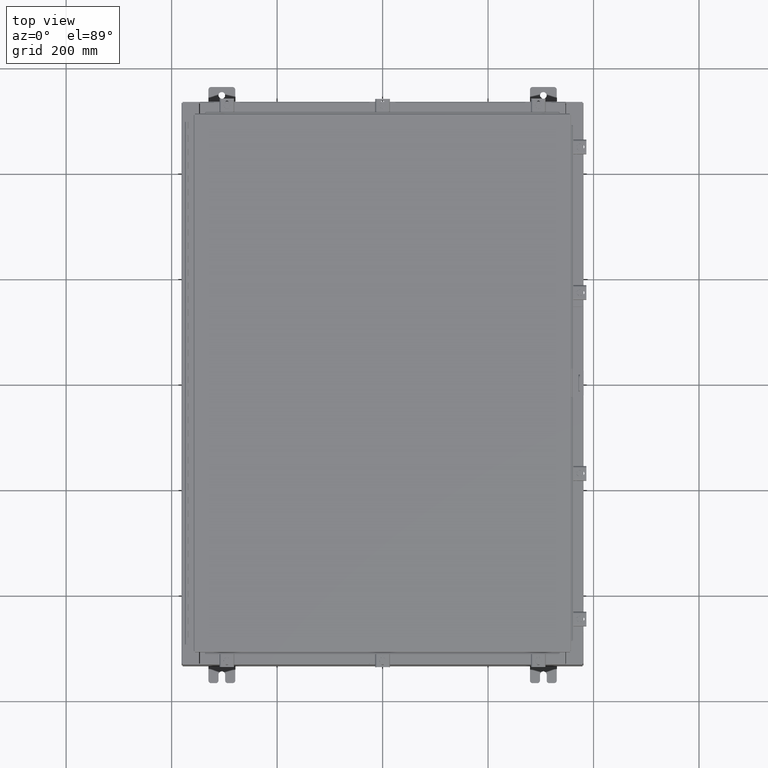
[diagram: clean part render]
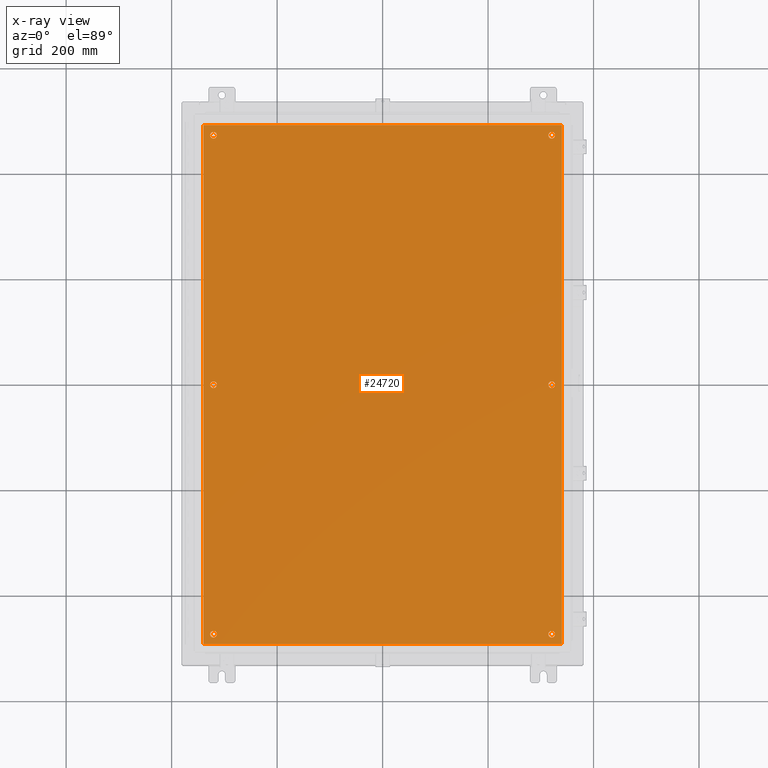
[diagram: x-ray — body ghosted, one internal face saturated and labeled with its STEP entity id]
A machine part, top view, then the same camera in x-ray: the body is ghosted and one INTERNAL B-rep face — a face not visible from any outside direction — is saturated and labeled: STEP entity #24720.
In plain terms, the highlighted planar face has unit normal (0, 0, -1).
Its self-contained STEP definition (entity closure, byte-faithful):
#491 = AXIS2_PLACEMENT_3D ( 'NONE', #9149, #34912, #12848 ) ;
#499 = DIRECTION ( 'NONE',  ( -1.000000000000000000, -0.0000000000000000000, -0.0000000000000000000 ) ) ;
#902 = CARTESIAN_POINT ( 'NONE',  ( -13.38300000000000300, 19.38299999999999200, -0.1040000000000041900 ) ) ;
#1068 = DIRECTION ( 'NONE',  ( 0.0000000000000000000, -1.000000000000000000, 0.0000000000000000000 ) ) ;
#1863 = LINE ( 'NONE', #44547, #30135 ) ;
#2125 = ORIENTED_EDGE ( 'NONE', *, *, #21528, .T. ) ;
#2820 = CARTESIAN_POINT ( 'NONE',  ( 12.62500000000000400, 18.62499999999999600, -0.1039999999999999800 ) ) ;
#4066 = VERTEX_POINT ( 'NONE', #41940 ) ;
#4936 = EDGE_CURVE ( 'NONE', #35049, #34937, #13552, .T. ) ;
#5159 = ORIENTED_EDGE ( 'NONE', *, *, #13239, .T. ) ;
#5634 = ORIENTED_EDGE ( 'NONE', *, *, #43997, .F. ) ;
#5685 = CARTESIAN_POINT ( 'NONE',  ( -12.62500000000000400, -18.62499999999999600, -0.1039999999999999800 ) ) ;
#6240 = VERTEX_POINT ( 'NONE', #39483 ) ;
#6535 = DIRECTION ( 'NONE',  ( -1.000000000000000000, 0.0000000000000000000, 0.0000000000000000000 ) ) ;
#6545 = DIRECTION ( 'NONE',  ( -0.0000000000000000000, -0.0000000000000000000, 1.000000000000000000 ) ) ;
#6703 = CARTESIAN_POINT ( 'NONE',  ( 13.38299999999999900, -19.38299999999999900, -0.1040000000000009100 ) ) ;
#7278 = CARTESIAN_POINT ( 'NONE',  ( -13.38300000000000300, 19.38299999999999200, -0.1040000000000041900 ) ) ;
#7612 = CARTESIAN_POINT ( 'NONE',  ( 13.50000000000000000, 19.38299999999999200, -0.1040000000000009100 ) ) ;
#7767 = CARTESIAN_POINT ( 'NONE',  ( 12.62500000000000200, 2.262348282635109500E-015, -0.1039999999999999800 ) ) ;
#8230 = FACE_BOUND ( 'NONE', #26983, .T. ) ;
#8465 = DIRECTION ( 'NONE',  ( -0.0000000000000000000, -0.0000000000000000000, 1.000000000000000000 ) ) ;
#8918 = EDGE_LOOP ( 'NONE', ( #2125, #15786 ) ) ;
#9006 = AXIS2_PLACEMENT_3D ( 'NONE', #30528, #8465, #34230 ) ;
#9149 = CARTESIAN_POINT ( 'NONE',  ( 12.62500000000000400, -18.62499999999999600, -0.1039999999999999800 ) ) ;
#9388 = DIRECTION ( 'NONE',  ( -1.000000000000000000, 0.0000000000000000000, 0.0000000000000000000 ) ) ;
#9478 = AXIS2_PLACEMENT_3D ( 'NONE', #19087, #44869, #22786 ) ;
#10097 = CARTESIAN_POINT ( 'NONE',  ( 12.87500000000000400, 2.262348282635109500E-015, -0.1039999999999999800 ) ) ;
#10171 = VERTEX_POINT ( 'NONE', #26053 ) ;
#10238 = VERTEX_POINT ( 'NONE', #11893 ) ;
#10370 = EDGE_LOOP ( 'NONE', ( #36594, #31292 ) ) ;
#10696 = ORIENTED_EDGE ( 'NONE', *, *, #18600, .F. ) ;
#10705 = VECTOR ( 'NONE', #45306, 39.37007874015748100 ) ;
#10766 = CIRCLE ( 'NONE', #36349, 0.2500000000000008900 ) ;
#10868 = EDGE_CURVE ( 'NONE', #37950, #22636, #23561, .T. ) ;
#11452 = DIRECTION ( 'NONE',  ( -1.000000000000000000, 0.0000000000000000000, 0.0000000000000000000 ) ) ;
#11766 = VERTEX_POINT ( 'NONE', #24162 ) ;
#11893 = CARTESIAN_POINT ( 'NONE',  ( -12.87500000000000500, -18.62499999999999600, -0.1039999999999999800 ) ) ;
#12434 = VERTEX_POINT ( 'NONE', #22125 ) ;
#12848 = DIRECTION ( 'NONE',  ( -1.000000000000000000, 0.0000000000000000000, 0.0000000000000000000 ) ) ;
#13239 = EDGE_CURVE ( 'NONE', #27480, #46648, #43429, .T. ) ;
#13358 = CARTESIAN_POINT ( 'NONE',  ( 12.37500000000000200, 2.292964452613793300E-015, -0.1039999999999999800 ) ) ;
#13379 = CARTESIAN_POINT ( 'NONE',  ( -12.62500000000000200, -8.298848852119578500E-016, -0.1039999999999999800 ) ) ;
#13552 = LINE ( 'NONE', #902, #32000 ) ;
#13987 = AXIS2_PLACEMENT_3D ( 'NONE', #2820, #28605, #6535 ) ;
#14262 = CARTESIAN_POINT ( 'NONE',  ( -12.62500000000000400, 18.62499999999999600, -0.1039999999999999800 ) ) ;
#14514 = EDGE_CURVE ( 'NONE', #22636, #37950, #36990, .T. ) ;
#15388 = ORIENTED_EDGE ( 'NONE', *, *, #25058, .T. ) ;
#15558 = AXIS2_PLACEMENT_3D ( 'NONE', #13379, #39133, #17055 ) ;
#15786 = ORIENTED_EDGE ( 'NONE', *, *, #46821, .T. ) ;
#15941 = EDGE_CURVE ( 'NONE', #45479, #11766, #27053, .T. ) ;
#15970 = AXIS2_PLACEMENT_3D ( 'NONE', #28613, #6545, #32321 ) ;
#16227 = EDGE_CURVE ( 'NONE', #11766, #45479, #36229, .T. ) ;
#16839 = FACE_OUTER_BOUND ( 'NONE', #28680, .T. ) ;
#17055 = DIRECTION ( 'NONE',  ( -1.000000000000000000, 0.0000000000000000000, 0.0000000000000000000 ) ) ;
#17302 = EDGE_CURVE ( 'NONE', #6240, #46580, #10766, .T. ) ;
#17553 = ORIENTED_EDGE ( 'NONE', *, *, #4936, .F. ) ;
#17606 = CARTESIAN_POINT ( 'NONE',  ( 0.0000000000000000000, 0.0000000000000000000, -0.1039999999999999800 ) ) ;
#17641 = CIRCLE ( 'NONE', #13987, 0.2500000000000008900 ) ;
#17962 = DIRECTION ( 'NONE',  ( -1.000000000000000000, 0.0000000000000000000, 0.0000000000000000000 ) ) ;
#18600 = EDGE_CURVE ( 'NONE', #12434, #35049, #27741, .T. ) ;
#18667 = CARTESIAN_POINT ( 'NONE',  ( -12.87500000000000400, -7.992687152332741600E-016, -0.1039999999999999800 ) ) ;
#19087 = CARTESIAN_POINT ( 'NONE',  ( 12.62500000000000400, -18.62499999999999600, -0.1039999999999999800 ) ) ;
#19365 = CARTESIAN_POINT ( 'NONE',  ( -13.50000000000000000, -19.38300000000000300, -0.1040000000000009100 ) ) ;
#19421 = CIRCLE ( 'NONE', #34253, 0.2500000000000008900 ) ;
#19532 = DIRECTION ( 'NONE',  ( -0.0000000000000000000, -0.0000000000000000000, 1.000000000000000000 ) ) ;
#20308 = FACE_BOUND ( 'NONE', #37181, .T. ) ;
#20962 = DIRECTION ( 'NONE',  ( -0.0000000000000000000, -0.0000000000000000000, 1.000000000000000000 ) ) ;
#21305 = DIRECTION ( 'NONE',  ( 0.0000000000000000000, 0.0000000000000000000, -1.000000000000000000 ) ) ;
#21378 = VERTEX_POINT ( 'NONE', #23615 ) ;
#21383 = CARTESIAN_POINT ( 'NONE',  ( -12.62500000000000400, 18.62499999999999600, -0.1039999999999999800 ) ) ;
#21418 = CARTESIAN_POINT ( 'NONE',  ( -13.38300000000000300, -19.38300000000000300, -0.1040000000000009100 ) ) ;
#21528 = EDGE_CURVE ( 'NONE', #21378, #4066, #17641, .T. ) ;
#21713 = AXIS2_PLACEMENT_3D ( 'NONE', #7767, #33532, #11452 ) ;
#22125 = CARTESIAN_POINT ( 'NONE',  ( 13.38299999999999900, 19.38299999999999200, -0.1040000000000009100 ) ) ;
#22461 = DIRECTION ( 'NONE',  ( 0.0000000000000000000, 1.000000000000000000, 0.0000000000000000000 ) ) ;
#22636 = VERTEX_POINT ( 'NONE', #13358 ) ;
#22786 = DIRECTION ( 'NONE',  ( -1.000000000000000000, 0.0000000000000000000, 0.0000000000000000000 ) ) ;
#23561 = CIRCLE ( 'NONE', #9006, 0.2500000000000008900 ) ;
#23615 = CARTESIAN_POINT ( 'NONE',  ( 12.87500000000000500, 18.62499999999999600, -0.1039999999999999800 ) ) ;
#23723 = CIRCLE ( 'NONE', #31722, 0.2500000000000008900 ) ;
#24162 = CARTESIAN_POINT ( 'NONE',  ( 12.37500000000000400, -18.62499999999999600, -0.1039999999999999800 ) ) ;
#24206 = CIRCLE ( 'NONE', #15970, 0.2500000000000008900 ) ;
#24720 = ADVANCED_FACE ( 'NONE', ( #8230, #20308, #27808, #46246, #36440, #26648, #16839 ), #39678, .T. ) ;
#25058 = EDGE_CURVE ( 'NONE', #10171, #10238, #23723, .T. ) ;
#25085 = DIRECTION ( 'NONE',  ( -1.000000000000000000, 0.0000000000000000000, 0.0000000000000000000 ) ) ;
#25899 = ORIENTED_EDGE ( 'NONE', *, *, #42304, .T. ) ;
#26053 = CARTESIAN_POINT ( 'NONE',  ( -12.37500000000000400, -18.62499999999999600, -0.1039999999999999800 ) ) ;
#26580 = VECTOR ( 'NONE', #499, 39.37007874015748100 ) ;
#26648 = FACE_BOUND ( 'NONE', #10370, .T. ) ;
#26833 = AXIS2_PLACEMENT_3D ( 'NONE', #43029, #20962, #46740 ) ;
#26983 = EDGE_LOOP ( 'NONE', ( #38936, #32059 ) ) ;
#27053 = CIRCLE ( 'NONE', #491, 0.2500000000000008900 ) ;
#27288 = CARTESIAN_POINT ( 'NONE',  ( -12.37500000000000200, -8.298848852119578500E-016, -0.1039999999999999800 ) ) ;
#27480 = VERTEX_POINT ( 'NONE', #18667 ) ;
#27683 = AXIS2_PLACEMENT_3D ( 'NONE', #17606, #21305, #47069 ) ;
#27741 = LINE ( 'NONE', #7612, #26580 ) ;
#27808 = FACE_BOUND ( 'NONE', #31834, .T. ) ;
#28131 = ORIENTED_EDGE ( 'NONE', *, *, #36088, .T. ) ;
#28605 = DIRECTION ( 'NONE',  ( -0.0000000000000000000, -0.0000000000000000000, 1.000000000000000000 ) ) ;
#28613 = CARTESIAN_POINT ( 'NONE',  ( -12.62500000000000200, -8.298848852119578500E-016, -0.1039999999999999800 ) ) ;
#28680 = EDGE_LOOP ( 'NONE', ( #44914, #17553, #10696, #5634 ) ) ;
#29134 = LINE ( 'NONE', #19365, #10705 ) ;
#29917 = VERTEX_POINT ( 'NONE', #6703 ) ;
#30135 = VECTOR ( 'NONE', #22461, 39.37007874015748100 ) ;
#30528 = CARTESIAN_POINT ( 'NONE',  ( 12.62500000000000200, 2.262348282635109500E-015, -0.1039999999999999800 ) ) ;
#31292 = ORIENTED_EDGE ( 'NONE', *, *, #37987, .T. ) ;
#31462 = DIRECTION ( 'NONE',  ( -0.0000000000000000000, -0.0000000000000000000, 1.000000000000000000 ) ) ;
#31722 = AXIS2_PLACEMENT_3D ( 'NONE', #41614, #19532, #45311 ) ;
#31834 = EDGE_LOOP ( 'NONE', ( #15388, #25899 ) ) ;
#32000 = VECTOR ( 'NONE', #1068, 39.37007874015748100 ) ;
#32017 = CIRCLE ( 'NONE', #36835, 0.2500000000000008900 ) ;
#32059 = ORIENTED_EDGE ( 'NONE', *, *, #14514, .T. ) ;
#32321 = DIRECTION ( 'NONE',  ( -1.000000000000000000, 0.0000000000000000000, 0.0000000000000000000 ) ) ;
#33532 = DIRECTION ( 'NONE',  ( -0.0000000000000000000, -0.0000000000000000000, 1.000000000000000000 ) ) ;
#34230 = DIRECTION ( 'NONE',  ( -1.000000000000000000, 0.0000000000000000000, 0.0000000000000000000 ) ) ;
#34253 = AXIS2_PLACEMENT_3D ( 'NONE', #14262, #40048, #17962 ) ;
#34912 = DIRECTION ( 'NONE',  ( -0.0000000000000000000, -0.0000000000000000000, 1.000000000000000000 ) ) ;
#34937 = VERTEX_POINT ( 'NONE', #21418 ) ;
#35049 = VERTEX_POINT ( 'NONE', #7278 ) ;
#35847 = CIRCLE ( 'NONE', #26833, 0.2500000000000008900 ) ;
#36088 = EDGE_CURVE ( 'NONE', #46648, #27480, #24206, .T. ) ;
#36229 = CIRCLE ( 'NONE', #9478, 0.2500000000000008900 ) ;
#36349 = AXIS2_PLACEMENT_3D ( 'NONE', #21383, #47155, #25085 ) ;
#36440 = FACE_BOUND ( 'NONE', #8918, .T. ) ;
#36594 = ORIENTED_EDGE ( 'NONE', *, *, #17302, .T. ) ;
#36835 = AXIS2_PLACEMENT_3D ( 'NONE', #5685, #31462, #9388 ) ;
#36990 = CIRCLE ( 'NONE', #21713, 0.2500000000000008900 ) ;
#37181 = EDGE_LOOP ( 'NONE', ( #28131, #5159 ) ) ;
#37720 = EDGE_LOOP ( 'NONE', ( #42160, #39052 ) ) ;
#37950 = VERTEX_POINT ( 'NONE', #10097 ) ;
#37987 = EDGE_CURVE ( 'NONE', #46580, #6240, #19421, .T. ) ;
#38936 = ORIENTED_EDGE ( 'NONE', *, *, #10868, .T. ) ;
#39052 = ORIENTED_EDGE ( 'NONE', *, *, #16227, .T. ) ;
#39133 = DIRECTION ( 'NONE',  ( -0.0000000000000000000, -0.0000000000000000000, 1.000000000000000000 ) ) ;
#39483 = CARTESIAN_POINT ( 'NONE',  ( -12.37500000000000400, 18.62499999999999600, -0.1039999999999999800 ) ) ;
#39678 = PLANE ( 'NONE',  #27683 ) ;
#40048 = DIRECTION ( 'NONE',  ( -0.0000000000000000000, -0.0000000000000000000, 1.000000000000000000 ) ) ;
#41614 = CARTESIAN_POINT ( 'NONE',  ( -12.62500000000000400, -18.62499999999999600, -0.1039999999999999800 ) ) ;
#41633 = CARTESIAN_POINT ( 'NONE',  ( -12.87500000000000500, 18.62499999999999600, -0.1039999999999999800 ) ) ;
#41940 = CARTESIAN_POINT ( 'NONE',  ( 12.37500000000000400, 18.62499999999999600, -0.1039999999999999800 ) ) ;
#42160 = ORIENTED_EDGE ( 'NONE', *, *, #15941, .T. ) ;
#42170 = EDGE_CURVE ( 'NONE', #34937, #29917, #29134, .T. ) ;
#42304 = EDGE_CURVE ( 'NONE', #10238, #10171, #32017, .T. ) ;
#42466 = CARTESIAN_POINT ( 'NONE',  ( 12.87500000000000500, -18.62499999999999600, -0.1039999999999999800 ) ) ;
#43029 = CARTESIAN_POINT ( 'NONE',  ( 12.62500000000000400, 18.62499999999999600, -0.1039999999999999800 ) ) ;
#43429 = CIRCLE ( 'NONE', #15558, 0.2500000000000008900 ) ;
#43997 = EDGE_CURVE ( 'NONE', #29917, #12434, #1863, .T. ) ;
#44547 = CARTESIAN_POINT ( 'NONE',  ( 13.38299999999999900, -19.38299999999999900, -0.1040000000000009100 ) ) ;
#44869 = DIRECTION ( 'NONE',  ( -0.0000000000000000000, -0.0000000000000000000, 1.000000000000000000 ) ) ;
#44914 = ORIENTED_EDGE ( 'NONE', *, *, #42170, .F. ) ;
#45306 = DIRECTION ( 'NONE',  ( 1.000000000000000000, -0.0000000000000000000, -0.0000000000000000000 ) ) ;
#45311 = DIRECTION ( 'NONE',  ( -1.000000000000000000, 0.0000000000000000000, 0.0000000000000000000 ) ) ;
#45479 = VERTEX_POINT ( 'NONE', #42466 ) ;
#46246 = FACE_BOUND ( 'NONE', #37720, .T. ) ;
#46580 = VERTEX_POINT ( 'NONE', #41633 ) ;
#46648 = VERTEX_POINT ( 'NONE', #27288 ) ;
#46740 = DIRECTION ( 'NONE',  ( -1.000000000000000000, 0.0000000000000000000, 0.0000000000000000000 ) ) ;
#46821 = EDGE_CURVE ( 'NONE', #4066, #21378, #35847, .T. ) ;
#47069 = DIRECTION ( 'NONE',  ( -1.000000000000000000, 0.0000000000000000000, -0.0000000000000000000 ) ) ;
#47155 = DIRECTION ( 'NONE',  ( -0.0000000000000000000, -0.0000000000000000000, 1.000000000000000000 ) ) ;